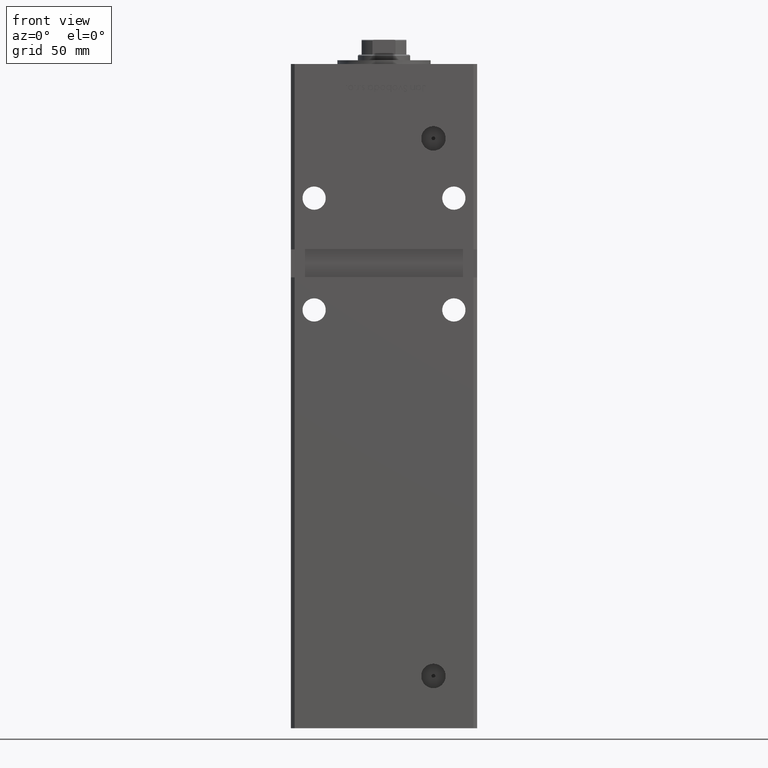
[diagram: clean part render]
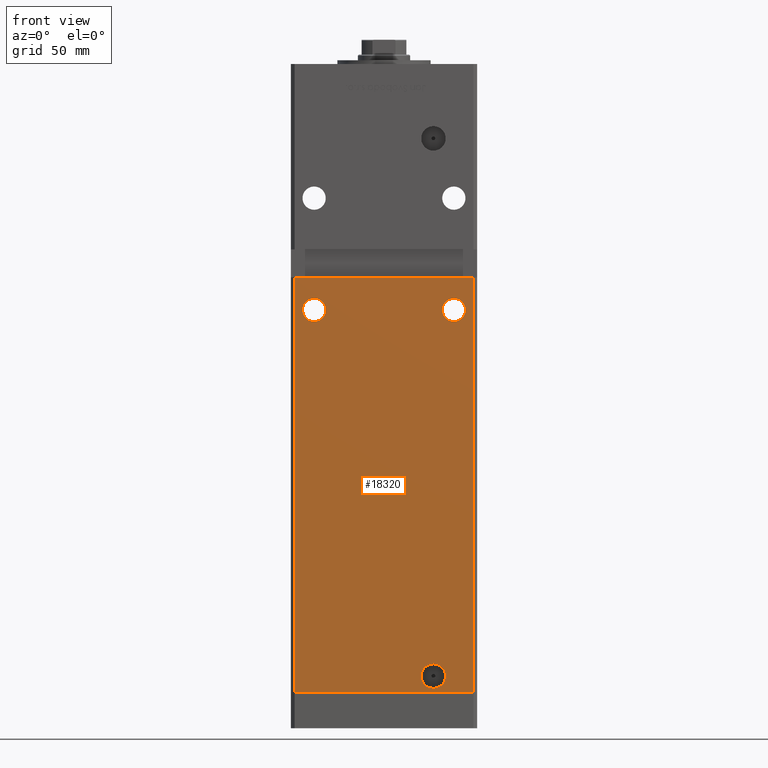
[diagram: same view with one face highlighted and labeled with its STEP entity id]
A machine part, front view. The second image highlights one B-rep face of the part: STEP entity #18320.
In plain terms, the highlighted planar face has unit normal (0, 1, 0).
Its self-contained STEP definition (entity closure, byte-faithful):
#372 = DIRECTION ( 'NONE',  ( 0.000000000000000000, 0.000000000000000000, 1.000000000000000000 ) ) ;
#1570 = DIRECTION ( 'NONE',  ( 0.000000000000000000, 0.000000000000000000, 1.000000000000000000 ) ) ;
#1609 = LINE ( 'NONE', #14752, #30730 ) ;
#1894 = CIRCLE ( 'NONE', #41386, 6.250000000000005329 ) ;
#4211 = FACE_BOUND ( 'NONE', #45906, .T. ) ;
#5266 = DIRECTION ( 'NONE',  ( 1.000000000000000000, 0.000000000000000000, 0.000000000000000000 ) ) ;
#5782 = EDGE_CURVE ( 'NONE', #24997, #17665, #33331, .T. ) ;
#6301 = ORIENTED_EDGE ( 'NONE', *, *, #38670, .T. ) ;
#6364 = VECTOR ( 'NONE', #29774, 1000.000000000000000 ) ;
#7677 = CARTESIAN_POINT ( 'NONE',  ( 47.99999999999998579, -43.50000000000000000, 0.000000000000000000 ) ) ;
#8420 = CARTESIAN_POINT ( 'NONE',  ( -37.50000000000000000, -43.50000000000000000, 205.5000000000000284 ) ) ;
#8622 = ORIENTED_EDGE ( 'NONE', *, *, #41931, .F. ) ;
#9305 = AXIS2_PLACEMENT_3D ( 'NONE', #8420, #40411, #372 ) ;
#9575 = VERTEX_POINT ( 'NONE', #30501 ) ;
#9731 = VERTEX_POINT ( 'NONE', #31231 ) ;
#9923 = CARTESIAN_POINT ( 'NONE',  ( 47.99999999999998579, -43.50000000000000000, 223.0000000000000000 ) ) ;
#10403 = EDGE_LOOP ( 'NONE', ( #36619, #33458, #6301, #51416 ) ) ;
#11349 = EDGE_CURVE ( 'NONE', #21990, #14037, #29939, .T. ) ;
#11999 = DIRECTION ( 'NONE',  ( 0.000000000000000000, -1.000000000000000000, 0.000000000000000000 ) ) ;
#12454 = DIRECTION ( 'NONE',  ( 0.000000000000000000, -1.000000000000000000, 0.000000000000000000 ) ) ;
#12878 = EDGE_CURVE ( 'NONE', #25860, #21356, #13672, .T. ) ;
#13539 = ORIENTED_EDGE ( 'NONE', *, *, #49281, .T. ) ;
#13672 = CIRCLE ( 'NONE', #50584, 6.250000000000005329 ) ;
#14037 = VERTEX_POINT ( 'NONE', #17641 ) ;
#14752 = CARTESIAN_POINT ( 'NONE',  ( -47.99999999999998579, -43.50000000000000000, 0.000000000000000000 ) ) ;
#15077 = CIRCLE ( 'NONE', #16812, 6.579999999999994742 ) ;
#15541 = EDGE_LOOP ( 'NONE', ( #8622, #28066 ) ) ;
#16812 = AXIS2_PLACEMENT_3D ( 'NONE', #45770, #12454, #24815 ) ;
#16824 = CARTESIAN_POINT ( 'NONE',  ( -47.99999999999998579, -43.50000000000000000, 318.5000000000000000 ) ) ;
#17244 = LINE ( 'NONE', #42496, #25288 ) ;
#17379 = ORIENTED_EDGE ( 'NONE', *, *, #5782, .T. ) ;
#17641 = CARTESIAN_POINT ( 'NONE',  ( 26.49999999999998934, -43.50000000000000000, 2.420000000000013252 ) ) ;
#17665 = VERTEX_POINT ( 'NONE', #22840 ) ;
#18320 = ADVANCED_FACE ( 'NONE', ( #4211, #49355, #37521, #25409 ), #46098, .F. ) ;
#18740 = DIRECTION ( 'NONE',  ( 0.000000000000000000, 1.000000000000000000, 0.000000000000000000 ) ) ;
#19424 = DIRECTION ( 'NONE',  ( 0.000000000000000000, 0.000000000000000000, 1.000000000000000000 ) ) ;
#19575 = CARTESIAN_POINT ( 'NONE',  ( 37.50000000000000000, -43.50000000000000000, 205.5000000000000284 ) ) ;
#19904 = ORIENTED_EDGE ( 'NONE', *, *, #24446, .T. ) ;
#20660 = CARTESIAN_POINT ( 'NONE',  ( 37.50000000000000000, -43.50000000000000000, 199.2500000000000000 ) ) ;
#21115 = LINE ( 'NONE', #37523, #23800 ) ;
#21356 = VERTEX_POINT ( 'NONE', #26692 ) ;
#21990 = VERTEX_POINT ( 'NONE', #23584 ) ;
#22840 = CARTESIAN_POINT ( 'NONE',  ( -37.50000000000000000, -43.50000000000000000, 211.7500000000000284 ) ) ;
#23584 = CARTESIAN_POINT ( 'NONE',  ( 26.49999999999998934, -43.50000000000000000, 15.58000000000000362 ) ) ;
#23800 = VECTOR ( 'NONE', #5266, 1000.000000000000000 ) ;
#24339 = DIRECTION ( 'NONE',  ( 0.000000000000000000, 1.000000000000000000, 0.000000000000000000 ) ) ;
#24446 = EDGE_CURVE ( 'NONE', #21356, #25860, #1894, .T. ) ;
#24815 = DIRECTION ( 'NONE',  ( 0.000000000000000000, 0.000000000000000000, -1.000000000000000000 ) ) ;
#24997 = VERTEX_POINT ( 'NONE', #41152 ) ;
#25288 = VECTOR ( 'NONE', #25572, 1000.000000000000000 ) ;
#25409 = FACE_OUTER_BOUND ( 'NONE', #10403, .T. ) ;
#25572 = DIRECTION ( 'NONE',  ( -0.000000000000000000, -0.000000000000000000, -1.000000000000000000 ) ) ;
#25860 = VERTEX_POINT ( 'NONE', #20660 ) ;
#26092 = EDGE_CURVE ( 'NONE', #52954, #52247, #50735, .T. ) ;
#26692 = CARTESIAN_POINT ( 'NONE',  ( 37.50000000000000000, -43.50000000000000000, 211.7500000000000284 ) ) ;
#26801 = CARTESIAN_POINT ( 'NONE',  ( 37.50000000000000000, -43.50000000000000000, 205.5000000000000284 ) ) ;
#28055 = AXIS2_PLACEMENT_3D ( 'NONE', #39603, #47666, #19424 ) ;
#28066 = ORIENTED_EDGE ( 'NONE', *, *, #11349, .F. ) ;
#28924 = DIRECTION ( 'NONE',  ( 0.000000000000000000, 0.000000000000000000, -1.000000000000000000 ) ) ;
#29774 = DIRECTION ( 'NONE',  ( -0.000000000000000000, -0.000000000000000000, -1.000000000000000000 ) ) ;
#29874 = EDGE_LOOP ( 'NONE', ( #19904, #47321 ) ) ;
#29939 = CIRCLE ( 'NONE', #45374, 6.579999999999994742 ) ;
#30501 = CARTESIAN_POINT ( 'NONE',  ( -47.99999999999998579, -43.50000000000000000, 0.000000000000000000 ) ) ;
#30730 = VECTOR ( 'NONE', #35438, 1000.000000000000000 ) ;
#31231 = CARTESIAN_POINT ( 'NONE',  ( -47.99999999999998579, -43.50000000000000000, 223.0000000000000000 ) ) ;
#31889 = AXIS2_PLACEMENT_3D ( 'NONE', #16824, #24339, #36986 ) ;
#33331 = CIRCLE ( 'NONE', #9305, 6.250000000000005329 ) ;
#33458 = ORIENTED_EDGE ( 'NONE', *, *, #46863, .F. ) ;
#35438 = DIRECTION ( 'NONE',  ( 1.000000000000000000, 0.000000000000000000, 0.000000000000000000 ) ) ;
#35901 = CIRCLE ( 'NONE', #28055, 6.250000000000005329 ) ;
#36619 = ORIENTED_EDGE ( 'NONE', *, *, #26092, .F. ) ;
#36986 = DIRECTION ( 'NONE',  ( 0.000000000000000000, -0.000000000000000000, 1.000000000000000000 ) ) ;
#37521 = FACE_BOUND ( 'NONE', #15541, .T. ) ;
#37523 = CARTESIAN_POINT ( 'NONE',  ( -49.99999999999998579, -43.50000000000000000, 223.0000000000000000 ) ) ;
#38670 = EDGE_CURVE ( 'NONE', #9731, #9575, #17244, .T. ) ;
#39603 = CARTESIAN_POINT ( 'NONE',  ( -37.50000000000000000, -43.50000000000000000, 205.5000000000000284 ) ) ;
#40014 = DIRECTION ( 'NONE',  ( 0.000000000000000000, 1.000000000000000000, 0.000000000000000000 ) ) ;
#40411 = DIRECTION ( 'NONE',  ( 0.000000000000000000, 1.000000000000000000, 0.000000000000000000 ) ) ;
#41152 = CARTESIAN_POINT ( 'NONE',  ( -37.50000000000000000, -43.50000000000000000, 199.2500000000000000 ) ) ;
#41386 = AXIS2_PLACEMENT_3D ( 'NONE', #19575, #40014, #52100 ) ;
#41931 = EDGE_CURVE ( 'NONE', #14037, #21990, #15077, .T. ) ;
#42496 = CARTESIAN_POINT ( 'NONE',  ( -47.99999999999998579, -43.50000000000000000, 318.5000000000000000 ) ) ;
#45374 = AXIS2_PLACEMENT_3D ( 'NONE', #48822, #11999, #28924 ) ;
#45770 = CARTESIAN_POINT ( 'NONE',  ( 26.49999999999998934, -43.50000000000000000, 9.000000000000007105 ) ) ;
#45906 = EDGE_LOOP ( 'NONE', ( #13539, #17379 ) ) ;
#46098 = PLANE ( 'NONE',  #31889 ) ;
#46863 = EDGE_CURVE ( 'NONE', #9731, #52954, #21115, .T. ) ;
#47321 = ORIENTED_EDGE ( 'NONE', *, *, #12878, .T. ) ;
#47666 = DIRECTION ( 'NONE',  ( 0.000000000000000000, 1.000000000000000000, 0.000000000000000000 ) ) ;
#48822 = CARTESIAN_POINT ( 'NONE',  ( 26.49999999999998934, -43.50000000000000000, 9.000000000000007105 ) ) ;
#49281 = EDGE_CURVE ( 'NONE', #17665, #24997, #35901, .T. ) ;
#49355 = FACE_BOUND ( 'NONE', #29874, .T. ) ;
#50218 = CARTESIAN_POINT ( 'NONE',  ( 47.99999999999998579, -43.50000000000000000, 318.5000000000000000 ) ) ;
#50584 = AXIS2_PLACEMENT_3D ( 'NONE', #26801, #18740, #1570 ) ;
#50735 = LINE ( 'NONE', #50218, #6364 ) ;
#51416 = ORIENTED_EDGE ( 'NONE', *, *, #52869, .T. ) ;
#52100 = DIRECTION ( 'NONE',  ( 0.000000000000000000, 0.000000000000000000, 1.000000000000000000 ) ) ;
#52247 = VERTEX_POINT ( 'NONE', #7677 ) ;
#52869 = EDGE_CURVE ( 'NONE', #9575, #52247, #1609, .T. ) ;
#52954 = VERTEX_POINT ( 'NONE', #9923 ) ;